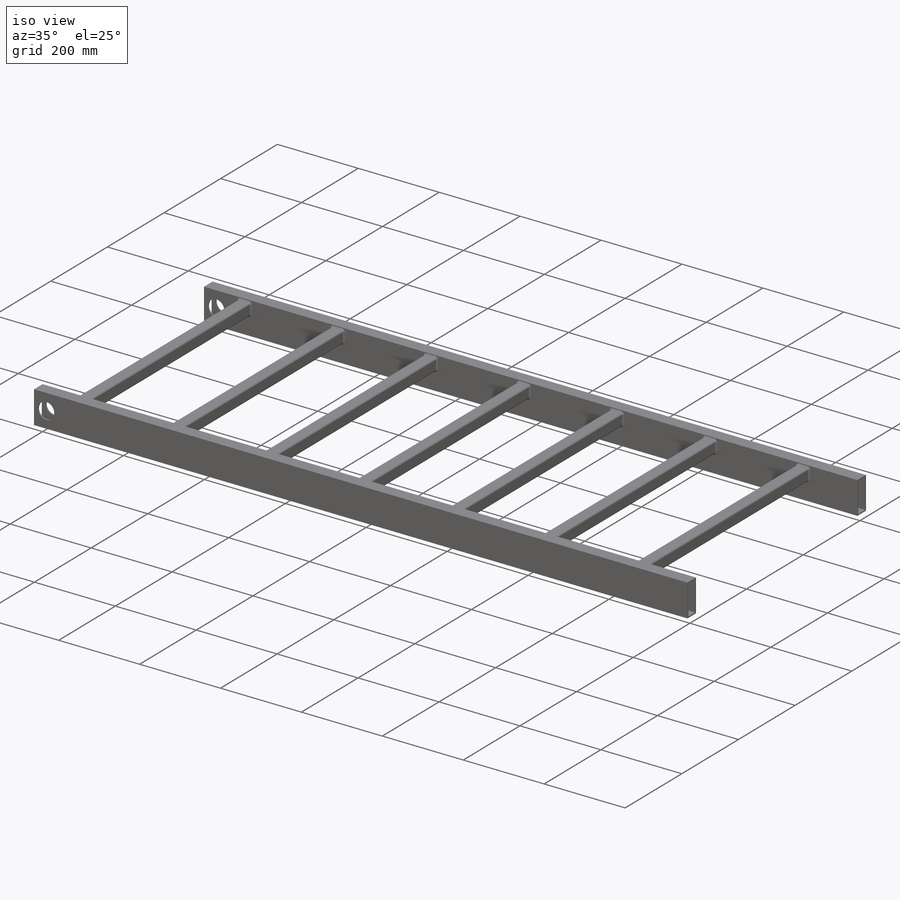
[diagram: iso view]
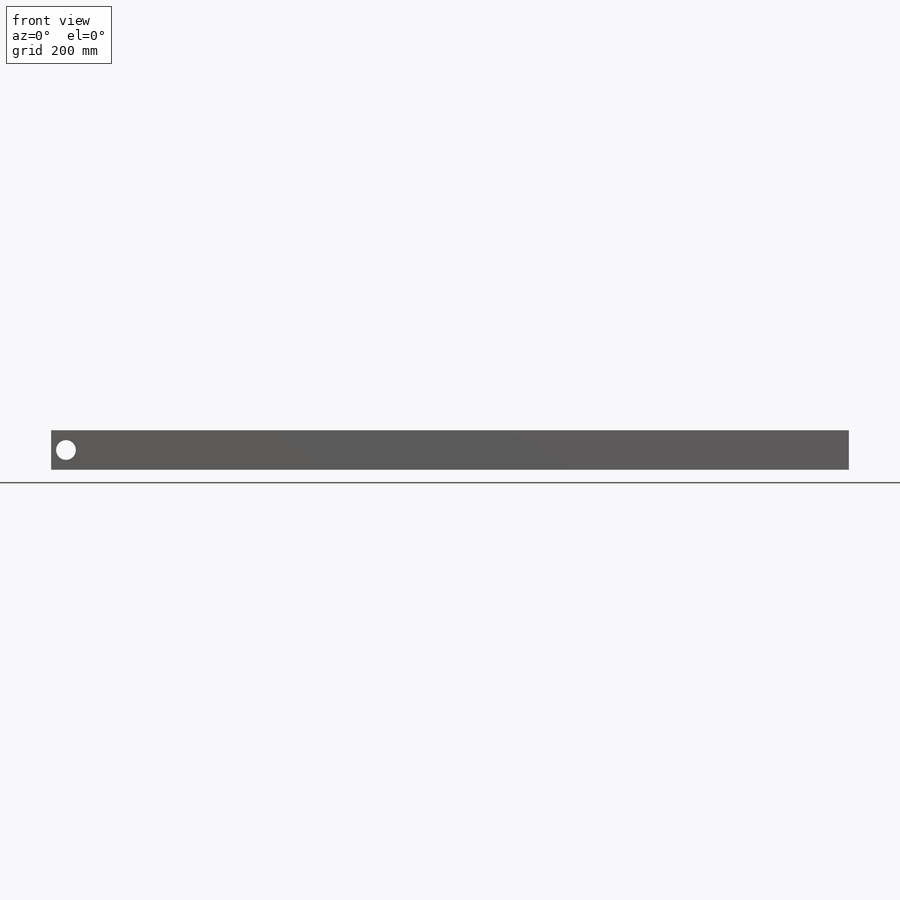
[diagram: front view]
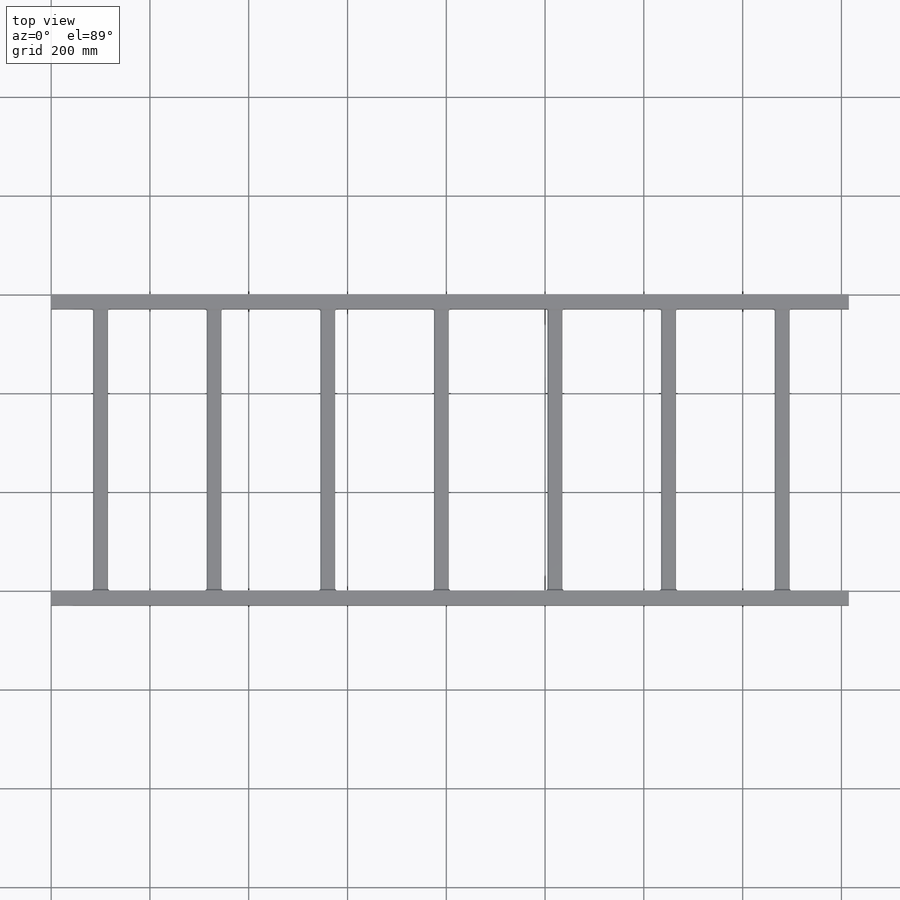
[diagram: top view]
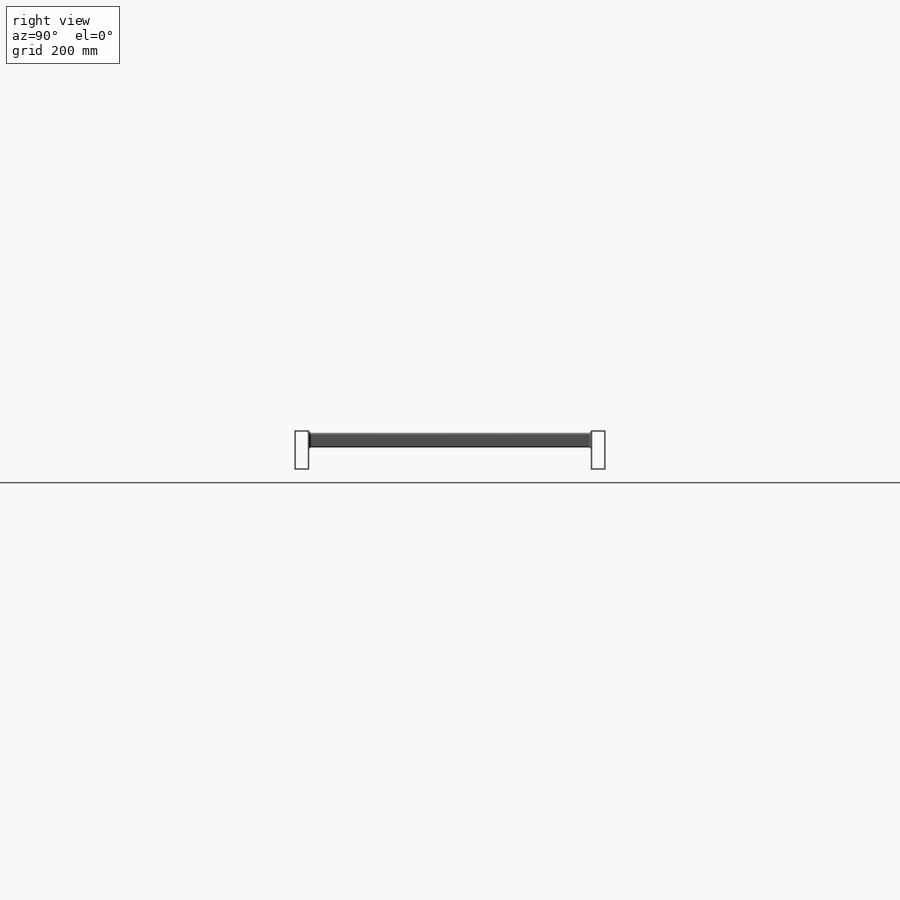
[diagram: right view]
SOLIDWORKS PART (.sldprt)
format: sldprt  version: not decoded by parser v0  size: 1,094,144 bytes
history: native  units: mm
features: sketch x7, plane x5, material x3, pattern_linear x3, hole x1 + 1 further entry (+11 scaffold rows collapsed)
feature tree (31):
  scaffold x11  (default folders/planes/origin — collapsed)
  material  "3.3206   AlMgSi F22"
  material  "3.3206   AlMgSi F22"
  material  "Material <nicht festgelegt>"
  "Zuschnittslistenelement2"
  plane  "Vorne"
  plane  "Oben"
  plane  "Rechts"
  sketch  "Skizze1"  dims[c1.D1=~252.690961mm c2.D1=1615.0mm]
  plane  "Ebene3"
  sketch  "Skizze12"  dims[D3=4.0mm D1=80.0mm D2=30.0mm D4=3.0mm]
  pattern_linear  "Lineares Muster1"  Count1=2 Count2=1 Spacing1=600mm Spacing2=1mm
  hole  "Ø40.0 (40) Durchmesser Bohrung1"  Diameter=40mm Depth=630mm
  sketch  "Skizze14"  dims[c1.D1=80.0mm c2.D1=30.0mm]
  sketch  "Skizze13"  dims[hole-wizard template sketch: 59 standard entries collapsed; hole parameters kept: c18.Bohrerdurchmesser=40.0mm c18.Bohrungstiefe=630.0mm]
  sketch  "3D-Skizze1"  dims[c1.D1=100.0mm c1.D2=40.0mm c1.D3=40.0mm c2.D2=20.0mm]
  plane  "Ebene4"
  sketch  "Skizze131"  dims[D3=4.0mm D1=30.0mm D2=30.0mm D4=3.0mm]
  pattern_linear  "Lineares Muster2"  Count1=7 Count2=1 Spacing1=230mm Spacing2=1mm
  sketch  "Kehlnaht2"  dims[D10=6.0mm D11=3.0mm D12=0.0mm D13=3.0mm D14=0.0mm]
  pattern_linear  "Lineares Muster3"  Count1=7 Count2=1 Spacing1=230mm Spacing2=1mm
decode coverage: 11 of 11 modeling features carry decoded parameters; 1 rows unclassified (native names shown)
note: ~ marks probable driven/reference dimensions
note: suppression state not decoded; provenance and decode notes live in map.json
